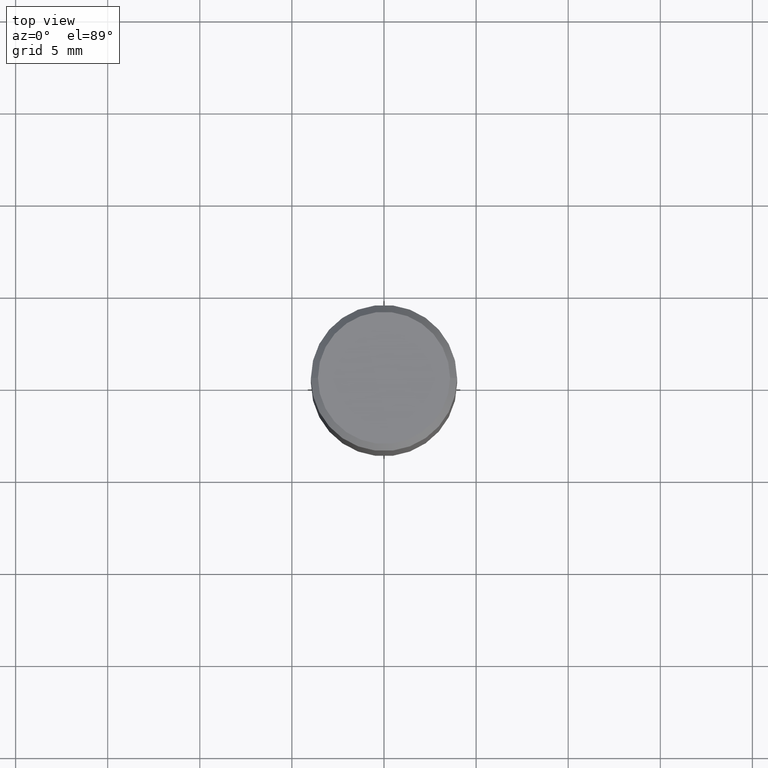
[diagram: clean part render]
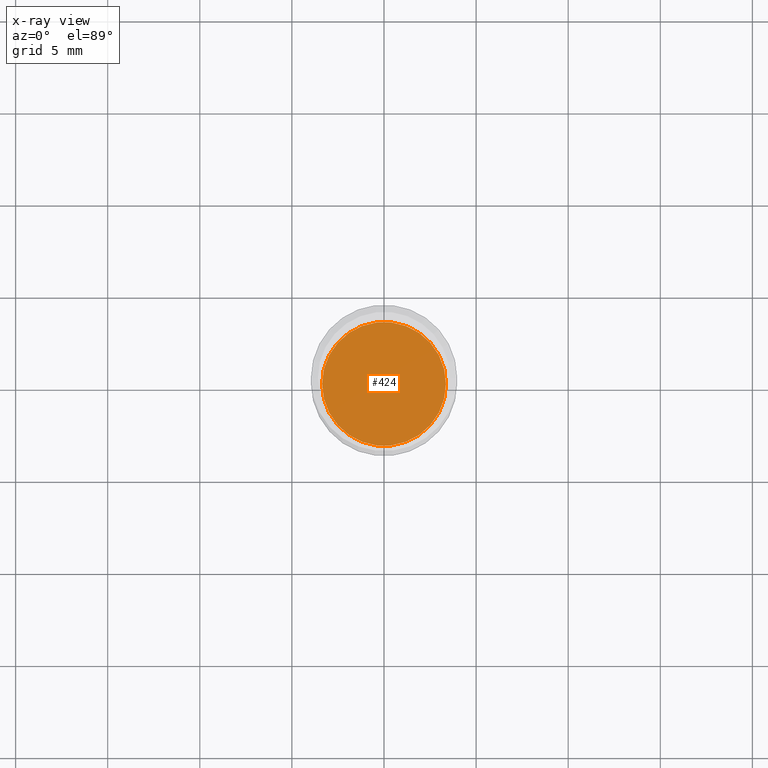
[diagram: x-ray — body ghosted, one internal face saturated and labeled with its STEP entity id]
A machine part, top view, then the same camera in x-ray: the body is ghosted and one INTERNAL B-rep face — a face not visible from any outside direction — is saturated and labeled: STEP entity #424.
In plain terms, the highlighted planar face has unit normal (-0, 0, 1).
Its self-contained STEP definition (entity closure, byte-faithful):
#44 = CIRCLE ( 'NONE', #409, 0.1323000000000000009 ) ;
#95 = PLANE ( 'NONE',  #186 ) ;
#101 = DIRECTION ( 'NONE',  ( -2.445468806185136597E-29, 3.491481338843145583E-15, 1.000000000000000000 ) ) ;
#149 = CARTESIAN_POINT ( 'NONE',  ( 1.834101604638852448E-29, -2.618611004132359088E-15, -0.7500000000000001110 ) ) ;
#174 = CIRCLE ( 'NONE', #220, 0.1323000000000000009 ) ;
#177 = FACE_OUTER_BOUND ( 'NONE', #231, .T. ) ;
#179 = DIRECTION ( 'NONE',  ( -2.438088387897960049E-29, 3.491481338843145188E-15, 1.000000000000000000 ) ) ;
#186 = AXIS2_PLACEMENT_3D ( 'NONE', #149, #179, #260 ) ;
#212 = VERTEX_POINT ( 'NONE', #319 ) ;
#220 = AXIS2_PLACEMENT_3D ( 'NONE', #251, #457, #360 ) ;
#231 = EDGE_LOOP ( 'NONE', ( #349, #399 ) ) ;
#232 = DIRECTION ( 'NONE',  ( 1.000000000000000000, -6.982962677686267499E-15, 0.000000000000000000 ) ) ;
#251 = CARTESIAN_POINT ( 'NONE',  ( 1.834101604638852448E-29, -2.618611004132359088E-15, -0.7500000000000001110 ) ) ;
#260 = DIRECTION ( 'NONE',  ( 1.000000000000000000, -6.982962677686265922E-15, 4.876176775795935793E-29 ) ) ;
#261 = VERTEX_POINT ( 'NONE', #432 ) ;
#271 = EDGE_CURVE ( 'NONE', #261, #212, #44, .T. ) ;
#319 = CARTESIAN_POINT ( 'NONE',  ( 0.1323000000000000009, -3.542456966390252304E-15, -0.7500000000000001110 ) ) ;
#349 = ORIENTED_EDGE ( 'NONE', *, *, #406, .F. ) ;
#354 = CARTESIAN_POINT ( 'NONE',  ( 1.834101604638852448E-29, -2.618611004132359088E-15, -0.7500000000000001110 ) ) ;
#360 = DIRECTION ( 'NONE',  ( 1.000000000000000000, -6.982962677686267499E-15, 0.000000000000000000 ) ) ;
#399 = ORIENTED_EDGE ( 'NONE', *, *, #271, .F. ) ;
#406 = EDGE_CURVE ( 'NONE', #212, #261, #174, .T. ) ;
#409 = AXIS2_PLACEMENT_3D ( 'NONE', #354, #101, #232 ) ;
#424 = ADVANCED_FACE ( 'NONE', ( #177 ), #95, .F. ) ;
#432 = CARTESIAN_POINT ( 'NONE',  ( -0.1323000000000000009, -1.675913737547635335E-15, -0.7500000000000001110 ) ) ;
#457 = DIRECTION ( 'NONE',  ( -2.445468806185136597E-29, 3.491481338843145583E-15, 1.000000000000000000 ) ) ;